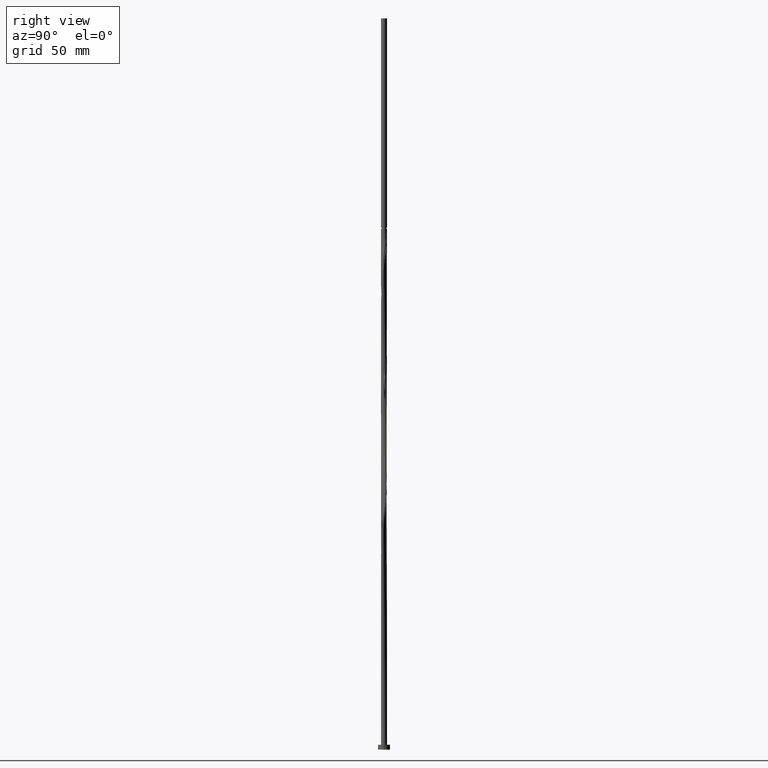
[diagram: clean part render]
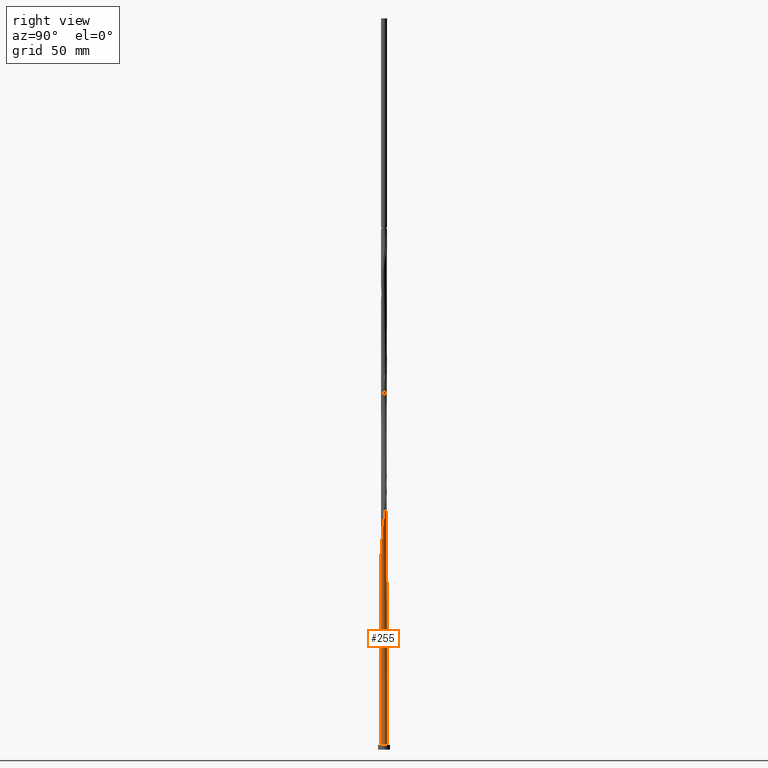
[diagram: same view with one face highlighted and labeled with its STEP entity id]
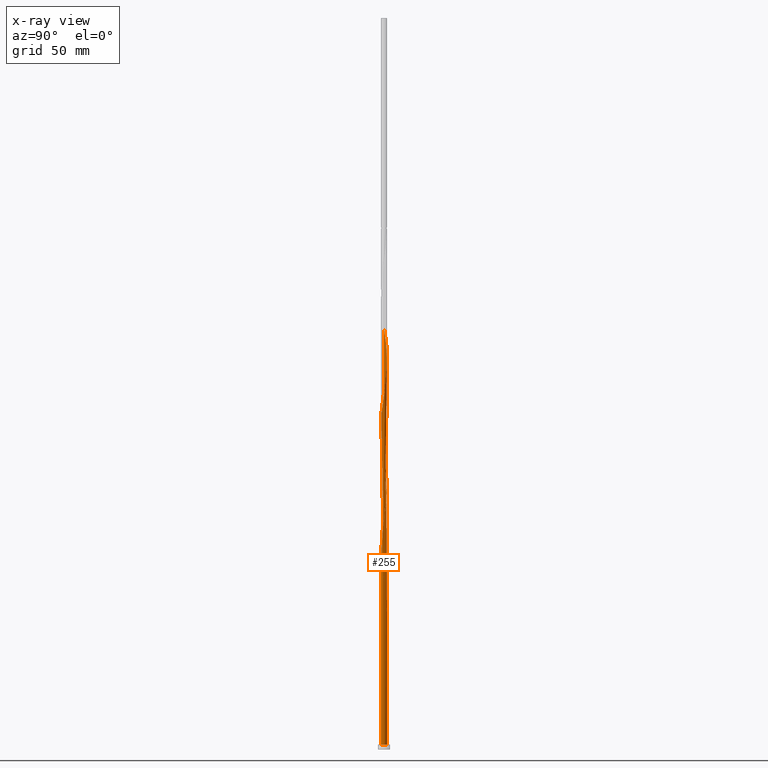
[diagram: x-ray of the same camera — body ghosted, the highlighted face saturated]
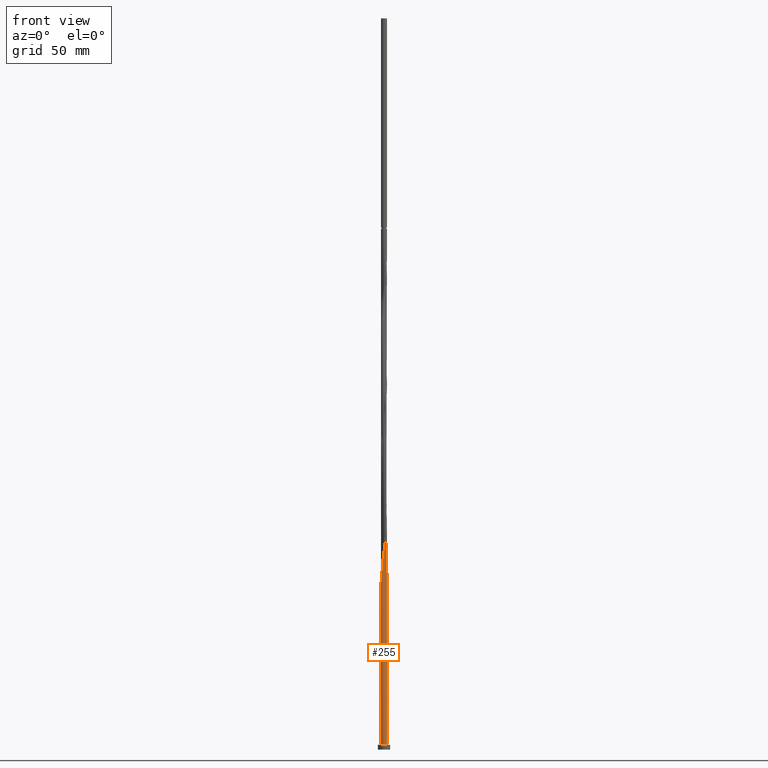
[diagram: same view with one face highlighted and labeled with its STEP entity id]
A machine part, right view. The second image highlights one B-rep face of the part: STEP entity #255.
The next image is the same camera in x-ray: the body ghosted, the highlighted face saturated — about 0% of this face is hidden behind the body in this view.
A second angle (front view) of the same face is appended — the face is thin or edge-on in the first view.
In plain terms, the highlighted cylindrical surface (bore or boss wall) has radius 1.25 mm, axis along (-0, -0, -1).
Its self-contained STEP definition (entity closure, byte-faithful):
#17 = CARTESIAN_POINT ( 'NONE',  ( -0.6434255898914315042, 1.080897657881206397, 112.1808331352044945 ) ) ;
#28 = CARTESIAN_POINT ( 'NONE',  ( 0.5692968815294148222, 1.112834696026722581, 103.7433331352044803 ) ) ;
#39 = CARTESIAN_POINT ( 'NONE',  ( 1.246249111809732080, -0.1708782837392381904, 93.43083313520452293 ) ) ;
#46 = CARTESIAN_POINT ( 'NONE',  ( 0.2487468592766564623, -1.225000000000001643, 83.11833313520449451 ) ) ;
#55 = CARTESIAN_POINT ( 'NONE',  ( -0.3867712106542927630, 1.196972960074381920, 162.8058331352045798 ) ) ;
#56 = CARTESIAN_POINT ( 'NONE',  ( 1.250000000000000000, 0.000000000000000000, 2.000000000000000000 ) ) ;
#62 = CARTESIAN_POINT ( 'NONE',  ( -1.249638075867677056, 0.03007788792010885476, 173.1183331352045229 ) ) ;
#71 = CARTESIAN_POINT ( 'NONE',  ( 1.249638075867677056, -0.03007788792010902129, 146.8683331352044661 ) ) ;
#79 = CARTESIAN_POINT ( 'NONE',  ( 0.3867712106542924855, -1.196972960074381920, 136.5558331352045229 ) ) ;
#85 = DIRECTION ( 'NONE',  ( 0.000000000000000000, 1.000000000000000000, -1.665334536937734811E-14 ) ) ;
#94 = CARTESIAN_POINT ( 'NONE',  ( -1.112834696026722803, 0.5692968815294147111, 64.36833313520450872 ) ) ;
#103 = CARTESIAN_POINT ( 'NONE',  ( -1.249638075867677056, 0.03007788792010885476, 68.11833313520452293 ) ) ;
#112 = CARTESIAN_POINT ( 'NONE',  ( -1.176979049344606620, 0.4439105247052375081, 65.30583313520450872 ) ) ;
#117 = ORIENTED_EDGE ( 'NONE', *, *, #1140, .T. ) ;
#155 = CARTESIAN_POINT ( 'NONE',  ( -1.249638075867677056, 0.03007788792010885476, 120.6183331352044945 ) ) ;
#165 = CARTESIAN_POINT ( 'NONE',  ( 0.9106216336863138805, 0.8678159233401303574, 100.9308331352044945 ) ) ;
#174 = CARTESIAN_POINT ( 'NONE',  ( 0.7556207566157806532, -0.9957596457837601944, 86.86833313520450872 ) ) ;
#181 = CARTESIAN_POINT ( 'NONE',  ( 0.3073944042222380713, 1.211614080577169350, 105.6183331352044803 ) ) ;
#188 = CARTESIAN_POINT ( 'NONE',  ( -0.5692968815294147111, -1.112834696026722581, 77.49333313520448030 ) ) ;
#192 = CARTESIAN_POINT ( 'NONE',  ( -0.3073944042222379602, -1.211614080577169350, 131.8683331352045229 ) ) ;
#195 = DIRECTION ( 'NONE',  ( -0.000000000000000000, -0.000000000000000000, -1.000000000000000000 ) ) ;
#200 = CARTESIAN_POINT ( 'NONE',  ( -1.176979049344606620, 0.4439105247052375081, 170.3058331352044377 ) ) ;
#208 = CARTESIAN_POINT ( 'NONE',  ( 0.8678159233401304684, -0.9106216336863137695, 140.3058331352044945 ) ) ;
#216 = CARTESIAN_POINT ( 'NONE',  ( 0.9957596457837601944, 0.7556207566157806532, 152.4933331352044945 ) ) ;
#229 = ORIENTED_EDGE ( 'NONE', *, *, #1120, .T. ) ;
#239 = CARTESIAN_POINT ( 'NONE',  ( -0.7556207566157808753, 0.9957596457837601944, 60.61833313520450872 ) ) ;
#251 = FACE_OUTER_BOUND ( 'NONE', #1791, .T. ) ;
#253 = CARTESIAN_POINT ( 'NONE',  ( -0.1708782837392375242, 1.246249111809730747, 59.68083313520449451 ) ) ;
#255 = ADVANCED_FACE ( 'NONE', ( #251 ), #1651, .T. ) ;
#281 = CARTESIAN_POINT ( 'NONE',  ( 0.2487468592766567677, 1.224999999999999645, 56.86833313520450872 ) ) ;
#282 = CARTESIAN_POINT ( 'NONE',  ( -0.6946832383535906930, 1.048690342708836987, 63.43083313520450872 ) ) ;
#299 = CARTESIAN_POINT ( 'NONE',  ( 0.1107225078990202172, -1.253027039925622033, 82.18083313520452293 ) ) ;
#304 = CARTESIAN_POINT ( 'NONE',  ( -1.250000000000000000, 0.000000000000000000, 2.000000000000000000 ) ) ;
#308 = CARTESIAN_POINT ( 'NONE',  ( -1.176979049344606620, 0.4439105247052375081, 117.8058331352044945 ) ) ;
#315 = CARTESIAN_POINT ( 'NONE',  ( 1.196972960074381920, 0.3867712106542924855, 97.18083313520449451 ) ) ;
#322 = CARTESIAN_POINT ( 'NONE',  ( -1.048690342708838319, 0.6946832383535920252, 115.9308331352045087 ) ) ;
#329 = CARTESIAN_POINT ( 'NONE',  ( -1.138935308977793603, -0.5150984002728620226, 124.3683331352044803 ) ) ;
#336 = CARTESIAN_POINT ( 'NONE',  ( -0.8678159233401306905, 0.9106216336863137695, 166.5558331352044945 ) ) ;
#343 = CARTESIAN_POINT ( 'NONE',  ( -0.9582531330244842271, 0.8026524360199528418, 167.4933331352044661 ) ) ;
#353 = CARTESIAN_POINT ( 'NONE',  ( 1.176979049344606620, -0.4439105247052376746, 144.0558331352045229 ) ) ;
#361 = CARTESIAN_POINT ( 'NONE',  ( -0.03007788792010891027, -1.249638075867677056, 133.7433331352044945 ) ) ;
#366 = CARTESIAN_POINT ( 'NONE',  ( -0.5150984002728621336, 1.138935308977793603, 58.74333313520450162 ) ) ;
#373 = VERTEX_POINT ( 'NONE', #422 ) ;
#388 = CARTESIAN_POINT ( 'NONE',  ( -1.250000000000001998, -1.042938424816607618E-15, 68.31881605729844864 ) ) ;
#401 =( BOUNDED_CURVE ( )  B_SPLINE_CURVE ( 2, ( #552, #1111, #1666, #830, #694, #1257, #1807, #1675, #419, #282, #838, #1399, #719, #253, #1012, #541, #1239 ),
 .UNSPECIFIED., .F., .F. ) 
 B_SPLINE_CURVE_WITH_KNOTS ( ( 3, 2, 2, 2, 2, 2, 2, 2, 3 ),
 ( 0.9295303401299220836, 0.9375000000000000000, 0.9464285714285713969, 0.9553571428571429047, 0.9642857142857143016, 0.9732142857142856984, 0.9821428571428570953, 0.9910714285714286031, 1.000000000000000000 ),
 .UNSPECIFIED. ) 
 CURVE ( )  GEOMETRIC_REPRESENTATION_ITEM ( )  RATIONAL_B_SPLINE_CURVE ( ( 0.9079949616362252840, 0.9039886423360883327, 0.9090909090909551349, 0.9033747362666300074, 0.9090909090909551349, 0.9033747362666300074, 0.9090909090909551349, 0.9033747362666300074, 0.9090909090909551349, 0.9033747362666300074, 0.9090909090909551349, 0.9033747362666300074, 0.9090909090909551349, 0.9033747362666300074, 0.9090909090909551349, 0.9033747362666300074, 0.9090909090909551349 ) ) 
 REPRESENTATION_ITEM ( '' )  );
#407 = AXIS2_PLACEMENT_3D ( 'NONE', #1085, #1360, #1378 ) ;
#419 = CARTESIAN_POINT ( 'NONE',  ( -0.8026524360199517316, 0.9582531330244832279, 64.36833313520452293 ) ) ;
#422 = CARTESIAN_POINT ( 'NONE',  ( -1.250000000000001998, -1.042938424816607816E-15, 68.31881605729844864 ) ) ;
#426 = DIRECTION ( 'NONE',  ( 0.000000000000000000, 0.000000000000000000, 1.000000000000000000 ) ) ;
#434 = CARTESIAN_POINT ( 'NONE',  ( 1.048690342708838319, -0.6946832383535923583, 89.68083313520452293 ) ) ;
#444 = CARTESIAN_POINT ( 'NONE',  ( -0.5150984002728621336, 1.138935308977793603, 111.2433331352044945 ) ) ;
#454 = CARTESIAN_POINT ( 'NONE',  ( -0.4439105247052376746, -1.176979049344606620, 78.43083313520450872 ) ) ;
#460 = CARTESIAN_POINT ( 'NONE',  ( -0.2487468592766562681, 1.225000000000001643, 109.3683331352045087 ) ) ;
#463 = CIRCLE ( 'NONE', #753, 1.250000000000000000 ) ;
#468 = CARTESIAN_POINT ( 'NONE',  ( 0.4439105247052376746, 1.176979049344606620, 157.1808331352045229 ) ) ;
#471 = CARTESIAN_POINT ( 'NONE',  ( -1.250000000000000000, 0.000000000000000000, 301.0000000000000000 ) ) ;
#475 = CARTESIAN_POINT ( 'NONE',  ( -0.6434255898914315042, 1.080897657881206397, 164.6808331352044661 ) ) ;
#483 = CARTESIAN_POINT ( 'NONE',  ( 1.080897657881206397, 0.6434255898914312821, 151.5558331352044945 ) ) ;
#493 = CARTESIAN_POINT ( 'NONE',  ( -0.6946832383535922473, -1.048690342708838319, 129.0558331352044945 ) ) ;
#502 = CARTESIAN_POINT ( 'NONE',  ( 1.253027039925622033, 0.1107225078990201755, 147.8058331352044945 ) ) ;
#510 = ORIENTED_EDGE ( 'NONE', *, *, #635, .F. ) ;
#515 = CARTESIAN_POINT ( 'NONE',  ( 0.000000000000000000, 0.000000000000000000, 56.86833313520450872 ) ) ;
#537 = CARTESIAN_POINT ( 'NONE',  ( -1.211614080577169572, 0.3073944042222377937, 66.24333313520450872 ) ) ;
#541 = CARTESIAN_POINT ( 'NONE',  ( 0.1107225078990204115, 1.253027039925620034, 57.80583313520452293 ) ) ;
#552 = CARTESIAN_POINT ( 'NONE',  ( -1.250000000000000000, 1.388096937501899354E-15, 71.66785021311058301 ) ) ;
#576 = CARTESIAN_POINT ( 'NONE',  ( 0.5150984002728620226, -1.138935308977793603, 84.99333313520449451 ) ) ;
#577 = DIRECTION ( 'NONE',  ( 1.000000000000000000, 0.000000000000000000, 0.000000000000000000 ) ) ;
#585 = CARTESIAN_POINT ( 'NONE',  ( 1.176979049344606620, -0.4439105247052376746, 91.55583313520452293 ) ) ;
#595 = CARTESIAN_POINT ( 'NONE',  ( -1.250000000000002220, -0.1256297269074021505, 69.15708713626204940 ) ) ;
#603 = CARTESIAN_POINT ( 'NONE',  ( 0.1708782837392383291, 1.246249111809732080, 106.5558331352045371 ) ) ;
#611 = VECTOR ( 'NONE', #195, 1000.000000000000000 ) ;
#613 = CARTESIAN_POINT ( 'NONE',  ( -0.5150984002728621336, 1.138935308977793603, 163.7433331352044661 ) ) ;
#620 = CARTESIAN_POINT ( 'NONE',  ( -1.211614080577169572, 0.3073944042222377937, 171.2433331352044661 ) ) ;
#628 = CARTESIAN_POINT ( 'NONE',  ( 1.138935308977793603, 0.5150984002728619116, 150.6183331352044945 ) ) ;
#633 = CARTESIAN_POINT ( 'NONE',  ( -0.9582531330244842271, 0.8026524360199528418, 62.49333313520451583 ) ) ;
#635 = EDGE_CURVE ( 'NONE', #373, #1483, #711, .T. ) ;
#638 = CARTESIAN_POINT ( 'NONE',  ( 1.246249111809732080, -0.1708782837392381904, 145.9308331352044661 ) ) ;
#642 = VERTEX_POINT ( 'NONE', #281 ) ;
#651 = EDGE_CURVE ( 'NONE', #1626, #1483, #463, .T. ) ;
#652 = CARTESIAN_POINT ( 'NONE',  ( -1.250000000000000000, 1.388096937501899354E-15, 71.66785021311058301 ) ) ;
#679 = VECTOR ( 'NONE', #1702, 1000.000000000000000 ) ;
#694 = CARTESIAN_POINT ( 'NONE',  ( -1.138935308977792271, 0.5150984002728618005, 68.11833313520453714 ) ) ;
#710 = CARTESIAN_POINT ( 'NONE',  ( 1.112834696026722581, -0.5692968815294148222, 90.61833313520449451 ) ) ;
#711 = LINE ( 'NONE', #1130, #679 ) ;
#719 = CARTESIAN_POINT ( 'NONE',  ( -0.3073944042222372386, 1.211614080577168462, 60.61833313520450872 ) ) ;
#721 = CARTESIAN_POINT ( 'NONE',  ( -0.03007788792010891027, -1.249638075867677056, 81.24333313520449451 ) ) ;
#728 = CARTESIAN_POINT ( 'NONE',  ( -1.138935308977793603, -0.5150984002728620226, 71.86833313520452293 ) ) ;
#736 = CARTESIAN_POINT ( 'NONE',  ( 1.249638075867677056, -0.03007788792010902129, 94.36833313520449451 ) ) ;
#743 = CARTESIAN_POINT ( 'NONE',  ( -1.225000000000001643, -0.2487468592766565456, 69.99333313520448030 ) ) ;
#747 = CARTESIAN_POINT ( 'NONE',  ( 0.1107225078990202172, -1.253027039925622033, 134.6808331352045514 ) ) ;
#753 = AXIS2_PLACEMENT_3D ( 'NONE', #1408, #426, #577 ) ;
#756 = CARTESIAN_POINT ( 'NONE',  ( -1.080897657881206397, -0.6434255898914315042, 125.3058331352044519 ) ) ;
#765 = CARTESIAN_POINT ( 'NONE',  ( 0.6434255898914315042, -1.080897657881206397, 138.4308331352044945 ) ) ;
#773 = CARTESIAN_POINT ( 'NONE',  ( 0.8026524360199528418, 0.9582531330244842271, 154.3683331352045229 ) ) ;
#787 = CARTESIAN_POINT ( 'NONE',  ( -0.6434255898914315042, 1.080897657881206397, 59.68083313520450162 ) ) ;
#791 = VERTEX_POINT ( 'NONE', #1149 ) ;
#797 = CARTESIAN_POINT ( 'NONE',  ( -1.246249111809732080, 0.1708782837392380793, 67.18083313520452293 ) ) ;
#815 = CARTESIAN_POINT ( 'NONE',  ( -0.3867712106542927630, 1.196972960074381920, 57.80583313520450872 ) ) ;
#830 = CARTESIAN_POINT ( 'NONE',  ( -1.196972960074379477, 0.3867712106542924855, 69.05583313520450872 ) ) ;
#838 = CARTESIAN_POINT ( 'NONE',  ( -0.5692968815294137119, 1.112834696026721470, 62.49333313520453714 ) ) ;
#847 = CARTESIAN_POINT ( 'NONE',  ( -1.211614080577169572, 0.3073944042222377937, 118.7433331352044945 ) ) ;
#857 = CARTESIAN_POINT ( 'NONE',  ( -0.3073944042222379602, -1.211614080577169350, 79.36833313520449451 ) ) ;
#866 = CARTESIAN_POINT ( 'NONE',  ( -0.9957596457837601944, -0.7556207566157807642, 73.74333313520448030 ) ) ;
#873 = CARTESIAN_POINT ( 'NONE',  ( 1.080897657881206397, 0.6434255898914312821, 99.05583313520450872 ) ) ;
#880 = CARTESIAN_POINT ( 'NONE',  ( -1.112834696026722803, 0.5692968815294147111, 116.8683331352045087 ) ) ;
#885 = CARTESIAN_POINT ( 'NONE',  ( -1.225000000000001643, -0.2487468592766565456, 122.4933331352045087 ) ) ;
#891 = CARTESIAN_POINT ( 'NONE',  ( -1.048690342708838319, 0.6946832383535920252, 168.4308331352044945 ) ) ;
#899 = CARTESIAN_POINT ( 'NONE',  ( -1.112834696026722803, 0.5692968815294147111, 169.3683331352044661 ) ) ;
#909 = CARTESIAN_POINT ( 'NONE',  ( 0.7556207566157806532, -0.9957596457837601944, 139.3683331352045514 ) ) ;
#916 = CARTESIAN_POINT ( 'NONE',  ( 0.000000000000000000, 0.000000000000000000, 301.0000000000000000 ) ) ;
#959 = AXIS2_PLACEMENT_3D ( 'NONE', #515, #1501, #85 ) ;
#984 = EDGE_CURVE ( 'NONE', #1371, #642, #401, .T. ) ;
#994 = CIRCLE ( 'NONE', #407, 1.250000000000000000 ) ;
#995 = CARTESIAN_POINT ( 'NONE',  ( -0.1708782837392381071, -1.246249111809732080, 80.30583313520449451 ) ) ;
#1005 = CARTESIAN_POINT ( 'NONE',  ( -0.7556207566157808753, 0.9957596457837601944, 113.1183331352044945 ) ) ;
#1012 = CARTESIAN_POINT ( 'NONE',  ( -0.03007788792010857026, 1.249638075867675280, 58.74333313520453714 ) ) ;
#1014 = CARTESIAN_POINT ( 'NONE',  ( -0.6946832383535922473, -1.048690342708838319, 76.55583313520449451 ) ) ;
#1020 = CARTESIAN_POINT ( 'NONE',  ( 1.253027039925622033, 0.1107225078990201755, 95.30583313520450872 ) ) ;
#1025 = CARTESIAN_POINT ( 'NONE',  ( 1.112834696026722581, -0.5692968815294148222, 143.1183331352044661 ) ) ;
#1030 = AXIS2_PLACEMENT_3D ( 'NONE', #916, #1503, #1789 ) ;
#1032 = CARTESIAN_POINT ( 'NONE',  ( -0.7556207566157808753, 0.9957596457837601944, 165.6183331352044661 ) ) ;
#1040 = CARTESIAN_POINT ( 'NONE',  ( -0.1107225078990200923, 1.253027039925622033, 160.9308331352044945 ) ) ;
#1049 = CARTESIAN_POINT ( 'NONE',  ( 0.2487468592766564623, -1.225000000000001643, 135.6183331352044661 ) ) ;
#1061 = CARTESIAN_POINT ( 'NONE',  ( 0.9106216336863138805, 0.8678159233401303574, 153.4308331352044945 ) ) ;
#1066 = CARTESIAN_POINT ( 'NONE',  ( -0.2487468592766562681, 1.225000000000001643, 56.86833313520450872 ) ) ;
#1078 = ORIENTED_EDGE ( 'NONE', *, *, #1709, .F. ) ;
#1085 = CARTESIAN_POINT ( 'NONE',  ( 0.000000000000000000, 0.000000000000000000, 2.000000000000000000 ) ) ;
#1100 = EDGE_CURVE ( 'NONE', #373, #1374, #1159, .T. ) ;
#1111 = CARTESIAN_POINT ( 'NONE',  ( -1.249999999999999778, 0.1256297269074029277, 70.82957913414696804 ) ) ;
#1120 = EDGE_CURVE ( 'NONE', #791, #642, #1806, .T. ) ;
#1130 = CARTESIAN_POINT ( 'NONE',  ( -1.250000000000000000, 0.000000000000000000, 301.0000000000000000 ) ) ;
#1138 = CARTESIAN_POINT ( 'NONE',  ( 0.3867712106542924855, -1.196972960074381920, 84.05583313520449451 ) ) ;
#1140 = EDGE_CURVE ( 'NONE', #1483, #1626, #994, .T. ) ;
#1148 = CARTESIAN_POINT ( 'NONE',  ( 0.4439105247052376746, 1.176979049344606620, 104.6808331352044945 ) ) ;
#1149 = CARTESIAN_POINT ( 'NONE',  ( -0.2487468592766562681, 1.225000000000001643, 56.86833313520450872 ) ) ;
#1158 = CARTESIAN_POINT ( 'NONE',  ( -1.080897657881206397, -0.6434255898914315042, 72.80583313520449451 ) ) ;
#1159 =( BOUNDED_CURVE ( )  B_SPLINE_CURVE ( 2, ( #388, #595, #743, #1691, #728, #1158, #866, #1710, #1424, #1014, #188, #454, #857, #995, #721, #299, #46, #1138, #576, #1570, #174, #1716, #1296, #434, #710, #585, #1549, #39, #736, #1020, #1416, #315, #1302, #873, #1286, #165, #1431, #1276, #28, #1148, #181, #603, #1437, #1701, #460, #1165, #444, #17, #1005, #1561, #1577, #322, #880, #308, #847, #1407, #155, #1753, #885, #1734, #329, #756, #1595, #1744, #1449, #493, #1442, #1331, #192, #1603, #361, #747, #1049, #79, #1459, #765, #909, #208, #1175, #1726, #1025, #353, #1184, #638, #71, #502, #1588, #1466, #628, #483, #216, #1061, #773, #1338, #1204, #468, #1612, #1582, #1315, #1040, #1194, #55, #613, #475, #1032, #336, #343, #891, #899, #200, #620, #1323, #62, #1758, #1638 ),
 .UNSPECIFIED., .F., .F. ) 
 B_SPLINE_CURVE_WITH_KNOTS ( ( 3, 2, 2, 2, 2, 2, 2, 2, 2, 2, 2, 2, 2, 2, 2, 2, 2, 2, 2, 2, 2, 2, 2, 2, 2, 2, 2, 2, 2, 2, 2, 2, 2, 2, 2, 2, 2, 2, 2, 2, 2, 2, 2, 2, 2, 2, 2, 2, 2, 2, 2, 2, 2, 2, 2, 2, 2, 3 ),
 ( 0.05453034012992204194, 0.06250000000000000000, 0.07142857142857139685, 0.08035714285714290472, 0.08928571428571430157, 0.09821428571428569843, 0.1071428571428570953, 0.1160714285714286031, 0.1250000000000000000, 0.1339285714285713969, 0.1428571428571429047, 0.1517857142857143016, 0.1607142857142856984, 0.1696428571428570953, 0.1785714285714286031, 0.1875000000000000000, 0.1964285714285713969, 0.2053571428571429047, 0.2142857142857143016, 0.2232142857142856984, 0.2321428571428570953, 0.2410714285714286031, 0.2500000000000000000, 0.2589285714285713969, 0.2678571428571429047, 0.2767857142857143016, 0.2857142857142856984, 0.2946428571428570953, 0.3035714285714286031, 0.3125000000000000000, 0.3214285714285713969, 0.3303571428571429047, 0.3392857142857143016, 0.3482142857142856984, 0.3571428571428570953, 0.3660714285714286031, 0.3750000000000000000, 0.3839285714285713969, 0.3928571428571429047, 0.4017857142857143016, 0.4107142857142856984, 0.4196428571428570953, 0.4285714285714286031, 0.4375000000000000000, 0.4464285714285713969, 0.4553571428571429047, 0.4642857142857143016, 0.4732142857142856984, 0.4821428571428570953, 0.4910714285714286031, 0.5000000000000000000, 0.5089285714285713969, 0.5178571428571427937, 0.5267857142857143016, 0.5357142857142856984, 0.5446428571428572063, 0.5535714285714286031, 0.5545303401299221946 ),
 .UNSPECIFIED. ) 
 CURVE ( )  GEOMETRIC_REPRESENTATION_ITEM ( )  RATIONAL_B_SPLINE_CURVE ( ( 0.9079949616362318343, 0.9039886423360947720, 0.9090909090909616852, 0.9033747362666364467, 0.9090909090909616852, 0.9033747362666364467, 0.9090909090909616852, 0.9033747362666364467, 0.9090909090909616852, 0.9033747362666364467, 0.9090909090909616852, 0.9033747362666364467, 0.9090909090909616852, 0.9033747362666364467, 0.9090909090909616852, 0.9033747362666364467, 0.9090909090909616852, 0.9033747362666364467, 0.9090909090909616852, 0.9033747362666364467, 0.9090909090909616852, 0.9033747362666364467, 0.9090909090909616852, 0.9033747362666364467, 0.9090909090909616852, 0.9033747362666364467, 0.9090909090909616852, 0.9033747362666364467, 0.9090909090909616852, 0.9033747362666364467, 0.9090909090909616852, 0.9033747362666364467, 0.9090909090909616852, 0.9033747362666364467, 0.9090909090909616852, 0.9033747362666364467, 0.9090909090909616852, 0.9033747362666364467, 0.9090909090909616852, 0.9033747362666364467, 0.9090909090909616852, 0.9033747362666364467, 0.9090909090909616852, 0.9033747362666364467, 0.9090909090909616852, 0.9033747362666364467, 0.9090909090909616852, 0.9033747362666364467, 0.9090909090909616852, 0.9033747362666364467, 0.9090909090909616852, 0.9033747362666364467, 0.9090909090909616852, 0.9033747362666364467, 0.9090909090909616852, 0.9033747362666364467, 0.9090909090909616852, 0.9033747362666364467, 0.9090909090909616852, 0.9033747362666364467, 0.9090909090909616852, 0.9033747362666364467, 0.9090909090909616852, 0.9033747362666364467, 0.9090909090909616852, 0.9033747362666364467, 0.9090909090909616852, 0.9033747362666364467, 0.9090909090909616852, 0.9033747362666364467, 0.9090909090909616852, 0.9033747362666364467, 0.9090909090909616852, 0.9033747362666364467, 0.9090909090909616852, 0.9033747362666364467, 0.9090909090909616852, 0.9033747362666364467, 0.9090909090909616852, 0.9033747362666364467, 0.9090909090909616852, 0.9033747362666364467, 0.9090909090909616852, 0.9033747362666364467, 0.9090909090909616852, 0.9033747362666364467, 0.9090909090909616852, 0.9033747362666364467, 0.9090909090909616852, 0.9033747362666364467, 0.9090909090909616852, 0.9033747362666364467, 0.9090909090909616852, 0.9033747362666364467, 0.9090909090909616852, 0.9033747362666364467, 0.9090909090909616852, 0.9033747362666364467, 0.9090909090909616852, 0.9033747362666364467, 0.9090909090909616852, 0.9033747362666364467, 0.9090909090909616852, 0.9033747362666364467, 0.9090909090909616852, 0.9033747362666364467, 0.9090909090909616852, 0.9033747362666364467, 0.9090909090909616852, 0.9033747362666364467, 0.9090909090909616852, 0.9033747362666364467, 0.9090909090909616852, 0.9084770030215033598, 0.9079949616362316123 ) ) 
 REPRESENTATION_ITEM ( '' )  );
#1165 = CARTESIAN_POINT ( 'NONE',  ( -0.3867712106542927630, 1.196972960074381920, 110.3058331352044803 ) ) ;
#1175 = CARTESIAN_POINT ( 'NONE',  ( 0.9582531330244842271, -0.8026524360199528418, 141.2433331352044945 ) ) ;
#1184 = CARTESIAN_POINT ( 'NONE',  ( 1.211614080577169350, -0.3073944042222380713, 144.9933331352044945 ) ) ;
#1194 = CARTESIAN_POINT ( 'NONE',  ( -0.2487468592766562681, 1.225000000000001643, 161.8683331352044945 ) ) ;
#1204 = CARTESIAN_POINT ( 'NONE',  ( 0.5692968815294148222, 1.112834696026722581, 156.2433331352044377 ) ) ;
#1225 = CARTESIAN_POINT ( 'NONE',  ( -1.250000000000001998, -1.042938424816607618E-15, 68.31881605729844864 ) ) ;
#1235 = CARTESIAN_POINT ( 'NONE',  ( -1.250000000000002220, 0.01504112145798771304, 68.21845336907337298 ) ) ;
#1239 = CARTESIAN_POINT ( 'NONE',  ( 0.2487468592766567677, 1.224999999999999645, 56.86833313520450872 ) ) ;
#1257 = CARTESIAN_POINT ( 'NONE',  ( -1.080897657881204621, 0.6434255898914308380, 67.18083313520449451 ) ) ;
#1273 =( BOUNDED_CURVE ( )  B_SPLINE_CURVE ( 2, ( #1066, #815, #366, #787, #239, #1350, #633, #1369, #94, #112, #537, #797, #103, #1235, #1225 ),
 .UNSPECIFIED., .F., .F. ) 
 B_SPLINE_CURVE_WITH_KNOTS ( ( 3, 2, 2, 2, 2, 2, 2, 3 ),
 ( 0.000000000000000000, 0.008928571428571396851, 0.01785714285714290472, 0.02678571428571430157, 0.03571428571428569843, 0.04464285714285709528, 0.05357142857142860315, 0.05453034012992204194 ),
 .UNSPECIFIED. ) 
 CURVE ( )  GEOMETRIC_REPRESENTATION_ITEM ( )  RATIONAL_B_SPLINE_CURVE ( ( 0.9090909090909616852, 0.9033747362666364467, 0.9090909090909616852, 0.9033747362666364467, 0.9090909090909616852, 0.9033747362666364467, 0.9090909090909616852, 0.9033747362666364467, 0.9090909090909616852, 0.9033747362666364467, 0.9090909090909616852, 0.9033747362666364467, 0.9090909090909616852, 0.9084770030215034708, 0.9079949616362318343 ) ) 
 REPRESENTATION_ITEM ( '' )  );
#1276 = CARTESIAN_POINT ( 'NONE',  ( 0.6946832383535923583, 1.048690342708838319, 102.8058331352044945 ) ) ;
#1286 = CARTESIAN_POINT ( 'NONE',  ( 0.9957596457837601944, 0.7556207566157806532, 99.99333313520450872 ) ) ;
#1296 = CARTESIAN_POINT ( 'NONE',  ( 0.9582531330244842271, -0.8026524360199528418, 88.74333313520453714 ) ) ;
#1302 = CARTESIAN_POINT ( 'NONE',  ( 1.138935308977793603, 0.5150984002728619116, 98.11833313520449451 ) ) ;
#1312 = EDGE_CURVE ( 'NONE', #791, #373, #1273, .T. ) ;
#1315 = CARTESIAN_POINT ( 'NONE',  ( 0.03007788792010909068, 1.249638075867676834, 159.9933331352044945 ) ) ;
#1323 = CARTESIAN_POINT ( 'NONE',  ( -1.246249111809732080, 0.1708782837392380793, 172.1808331352045229 ) ) ;
#1331 = CARTESIAN_POINT ( 'NONE',  ( -0.4439105247052376746, -1.176979049344606620, 130.9308331352045229 ) ) ;
#1338 = CARTESIAN_POINT ( 'NONE',  ( 0.6946832383535923583, 1.048690342708838319, 155.3058331352044661 ) ) ;
#1349 = ORIENTED_EDGE ( 'NONE', *, *, #1312, .F. ) ;
#1350 = CARTESIAN_POINT ( 'NONE',  ( -0.8678159233401306905, 0.9106216336863137695, 61.55583313520451583 ) ) ;
#1360 = DIRECTION ( 'NONE',  ( 0.000000000000000000, 0.000000000000000000, 1.000000000000000000 ) ) ;
#1369 = CARTESIAN_POINT ( 'NONE',  ( -1.048690342708838319, 0.6946832383535920252, 63.43083313520450872 ) ) ;
#1371 = VERTEX_POINT ( 'NONE', #652 ) ;
#1374 = VERTEX_POINT ( 'NONE', #1777 ) ;
#1378 = DIRECTION ( 'NONE',  ( 1.000000000000000000, 0.000000000000000000, 0.000000000000000000 ) ) ;
#1399 = CARTESIAN_POINT ( 'NONE',  ( -0.4439105247052368419, 1.176979049344605066, 61.55583313520449451 ) ) ;
#1407 = CARTESIAN_POINT ( 'NONE',  ( -1.246249111809732080, 0.1708782837392380793, 119.6808331352044945 ) ) ;
#1408 = CARTESIAN_POINT ( 'NONE',  ( 0.000000000000000000, 0.000000000000000000, 2.000000000000000000 ) ) ;
#1416 = CARTESIAN_POINT ( 'NONE',  ( 1.225000000000001643, 0.2487468592766563236, 96.24333313520450872 ) ) ;
#1424 = CARTESIAN_POINT ( 'NONE',  ( -0.8026524360199528418, -0.9582531330244842271, 75.61833313520452293 ) ) ;
#1431 = CARTESIAN_POINT ( 'NONE',  ( 0.8026524360199528418, 0.9582531330244842271, 101.8683331352045087 ) ) ;
#1437 = CARTESIAN_POINT ( 'NONE',  ( 0.03007788792010909068, 1.249638075867676834, 107.4933331352045229 ) ) ;
#1442 = CARTESIAN_POINT ( 'NONE',  ( -0.5692968815294147111, -1.112834696026722581, 129.9933331352044945 ) ) ;
#1449 = CARTESIAN_POINT ( 'NONE',  ( -0.8026524360199528418, -0.9582531330244842271, 128.1183331352045229 ) ) ;
#1452 = LINE ( 'NONE', #471, #611 ) ;
#1459 = CARTESIAN_POINT ( 'NONE',  ( 0.5150984002728620226, -1.138935308977793603, 137.4933331352045229 ) ) ;
#1463 = ORIENTED_EDGE ( 'NONE', *, *, #1100, .F. ) ;
#1466 = CARTESIAN_POINT ( 'NONE',  ( 1.196972960074381920, 0.3867712106542924855, 149.6808331352044661 ) ) ;
#1470 = ORIENTED_EDGE ( 'NONE', *, *, #635, .T. ) ;
#1483 = VERTEX_POINT ( 'NONE', #304 ) ;
#1501 = DIRECTION ( 'NONE',  ( -3.081487911019577365E-30, -1.387778780781446307E-14, -1.000000000000000000 ) ) ;
#1503 = DIRECTION ( 'NONE',  ( -0.000000000000000000, -0.000000000000000000, -1.000000000000000000 ) ) ;
#1549 = CARTESIAN_POINT ( 'NONE',  ( 1.211614080577169350, -0.3073944042222380713, 92.49333313520449451 ) ) ;
#1561 = CARTESIAN_POINT ( 'NONE',  ( -0.8678159233401306905, 0.9106216336863137695, 114.0558331352044803 ) ) ;
#1570 = CARTESIAN_POINT ( 'NONE',  ( 0.6434255898914315042, -1.080897657881206397, 85.93083313520449451 ) ) ;
#1577 = CARTESIAN_POINT ( 'NONE',  ( -0.9582531330244842271, 0.8026524360199528418, 114.9933331352045087 ) ) ;
#1582 = CARTESIAN_POINT ( 'NONE',  ( 0.1708782837392383291, 1.246249111809732080, 159.0558331352044661 ) ) ;
#1588 = CARTESIAN_POINT ( 'NONE',  ( 1.225000000000001643, 0.2487468592766563236, 148.7433331352044945 ) ) ;
#1595 = CARTESIAN_POINT ( 'NONE',  ( -0.9957596457837601944, -0.7556207566157807642, 126.2433331352044945 ) ) ;
#1600 = ORIENTED_EDGE ( 'NONE', *, *, #984, .F. ) ;
#1603 = CARTESIAN_POINT ( 'NONE',  ( -0.1708782837392381071, -1.246249111809732080, 132.8058331352044945 ) ) ;
#1612 = CARTESIAN_POINT ( 'NONE',  ( 0.3073944042222380713, 1.211614080577169350, 158.1183331352044945 ) ) ;
#1626 = VERTEX_POINT ( 'NONE', #56 ) ;
#1638 = CARTESIAN_POINT ( 'NONE',  ( -1.250000000000001776, -8.545005341073456909E-16, 173.3188160572984486 ) ) ;
#1651 = CYLINDRICAL_SURFACE ( 'NONE', #1030, 1.250000000000000000 ) ;
#1664 = ORIENTED_EDGE ( 'NONE', *, *, #651, .T. ) ;
#1666 = CARTESIAN_POINT ( 'NONE',  ( -1.224999999999999645, 0.2487468592766564901, 69.99333313520450872 ) ) ;
#1675 = CARTESIAN_POINT ( 'NONE',  ( -0.9106216336863119931, 0.8678159233401292472, 65.30583313520452293 ) ) ;
#1691 = CARTESIAN_POINT ( 'NONE',  ( -1.196972960074381920, -0.3867712106542926520, 70.93083313520449451 ) ) ;
#1701 = CARTESIAN_POINT ( 'NONE',  ( -0.1107225078990200923, 1.253027039925622033, 108.4308331352045229 ) ) ;
#1702 = DIRECTION ( 'NONE',  ( -0.000000000000000000, -0.000000000000000000, -1.000000000000000000 ) ) ;
#1709 = EDGE_CURVE ( 'NONE', #1374, #1371, #1452, .T. ) ;
#1710 = CARTESIAN_POINT ( 'NONE',  ( -0.9106216336863137695, -0.8678159233401304684, 74.68083313520450872 ) ) ;
#1716 = CARTESIAN_POINT ( 'NONE',  ( 0.8678159233401304684, -0.9106216336863137695, 87.80583313520449451 ) ) ;
#1726 = CARTESIAN_POINT ( 'NONE',  ( 1.048690342708838319, -0.6946832383535923583, 142.1808331352044661 ) ) ;
#1734 = CARTESIAN_POINT ( 'NONE',  ( -1.196972960074381920, -0.3867712106542926520, 123.4308331352045087 ) ) ;
#1744 = CARTESIAN_POINT ( 'NONE',  ( -0.9106216336863137695, -0.8678159233401304684, 127.1808331352044803 ) ) ;
#1753 = CARTESIAN_POINT ( 'NONE',  ( -1.253027039925622033, -0.1107225078990203143, 121.5558331352044945 ) ) ;
#1758 = CARTESIAN_POINT ( 'NONE',  ( -1.250000000000001998, 0.01504112145798531391, 173.2184533690733872 ) ) ;
#1777 = CARTESIAN_POINT ( 'NONE',  ( -1.250000000000001776, -8.545005341073457895E-16, 173.3188160572984486 ) ) ;
#1789 = DIRECTION ( 'NONE',  ( -1.000000000000000000, 0.000000000000000000, 0.000000000000000000 ) ) ;
#1791 = EDGE_LOOP ( 'NONE', ( #1078, #1463, #1470, #117, #1664, #510, #1349, #229, #1600 ) ) ;
#1806 = CIRCLE ( 'NONE', #959, 1.250000000000000000 ) ;
#1807 = CARTESIAN_POINT ( 'NONE',  ( -0.9957596457837584181, 0.7556207566157800981, 66.24333313520450872 ) ) ;